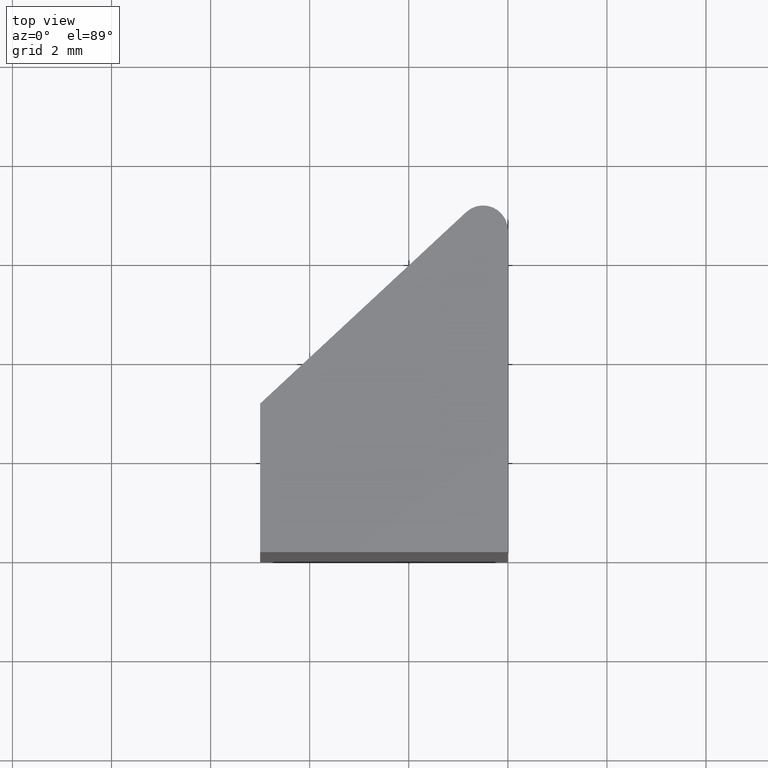
[diagram: clean part render]
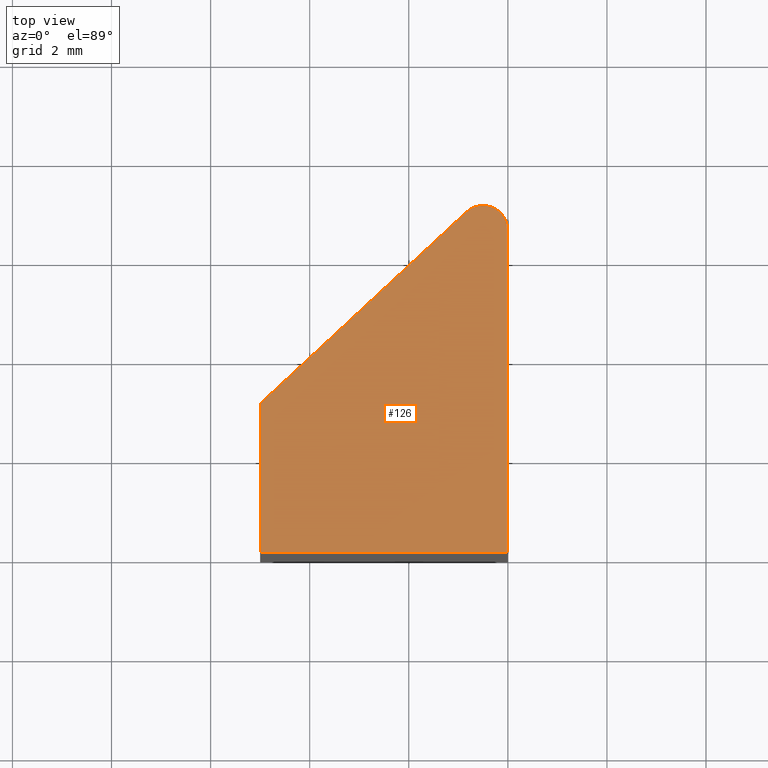
[diagram: same view with one face highlighted and labeled with its STEP entity id]
A machine part, top view. The second image highlights one B-rep face of the part: STEP entity #126.
In plain terms, the highlighted planar face has unit normal (0, 0, 1).
Its self-contained STEP definition (entity closure, byte-faithful):
#23=FACE_OUTER_BOUND('',#30,.T.);
#30=EDGE_LOOP('',(#109,#110,#111,#112,#113));
#32=CIRCLE('',#155,0.5);
#37=LINE('',#207,#50);
#40=LINE('',#212,#53);
#43=LINE('',#220,#56);
#45=LINE('',#223,#58);
#50=VECTOR('',#171,10.);
#53=VECTOR('',#176,10.);
#56=VECTOR('',#185,10.);
#58=VECTOR('',#189,10.);
#64=VERTEX_POINT('',#205);
#65=VERTEX_POINT('',#206);
#66=VERTEX_POINT('',#211);
#67=VERTEX_POINT('',#215);
#68=VERTEX_POINT('',#219);
#74=EDGE_CURVE('',#64,#65,#37,.T.);
#77=EDGE_CURVE('',#65,#66,#40,.T.);
#79=EDGE_CURVE('',#66,#67,#32,.T.);
#81=EDGE_CURVE('',#67,#68,#43,.T.);
#83=EDGE_CURVE('',#68,#64,#45,.T.);
#109=ORIENTED_EDGE('',*,*,#74,.F.);
#110=ORIENTED_EDGE('',*,*,#83,.F.);
#111=ORIENTED_EDGE('',*,*,#81,.F.);
#112=ORIENTED_EDGE('',*,*,#79,.F.);
#113=ORIENTED_EDGE('',*,*,#77,.F.);
#119=PLANE('',#158);
#126=ADVANCED_FACE('',(#23),#119,.T.);
#155=AXIS2_PLACEMENT_3D('',#216,#180,#181);
#158=AXIS2_PLACEMENT_3D('',#224,#190,#191);
#171=DIRECTION('',(1.85037170770859E-16,1.,0.));
#176=DIRECTION('',(0.732464232495423,0.680805514163106,0.));
#180=DIRECTION('center_axis',(0.,0.,-1.));
#181=DIRECTION('ref_axis',(-1.,0.,0.));
#185=DIRECTION('',(3.73632748671928E-16,-1.,0.));
#189=DIRECTION('',(-1.,-2.11954672609056E-16,0.));
#190=DIRECTION('center_axis',(0.,0.,1.));
#191=DIRECTION('ref_axis',(1.,0.,0.));
#205=CARTESIAN_POINT('',(-5.,1.16067268620503E-15,6.));
#206=CARTESIAN_POINT('',(-5.,3.,6.));
#207=CARTESIAN_POINT('',(-5.,1.16067268620503E-15,6.));
#211=CARTESIAN_POINT('',(-0.840402757081551,6.86623211624771,6.));
#212=CARTESIAN_POINT('',(-5.,3.,6.));
#215=CARTESIAN_POINT('',(2.0122792321331E-15,6.5,6.));
#216=CARTESIAN_POINT('Origin',(-0.499999999999998,6.5,6.));
#219=CARTESIAN_POINT('',(4.44089209850063E-15,2.22044604925031E-15,6.));
#220=CARTESIAN_POINT('',(2.0122792321331E-15,6.5,6.));
#223=CARTESIAN_POINT('',(4.44089209850063E-15,2.22044604925031E-15,6.));
#224=CARTESIAN_POINT('Origin',(-2.08490941817522,2.88574699083849,6.));